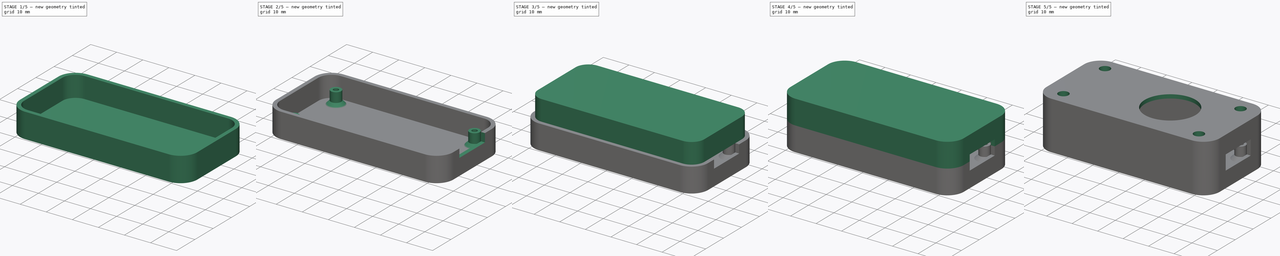
[diagram: build sequence overview — one tinted view per stage of 5, left to right]
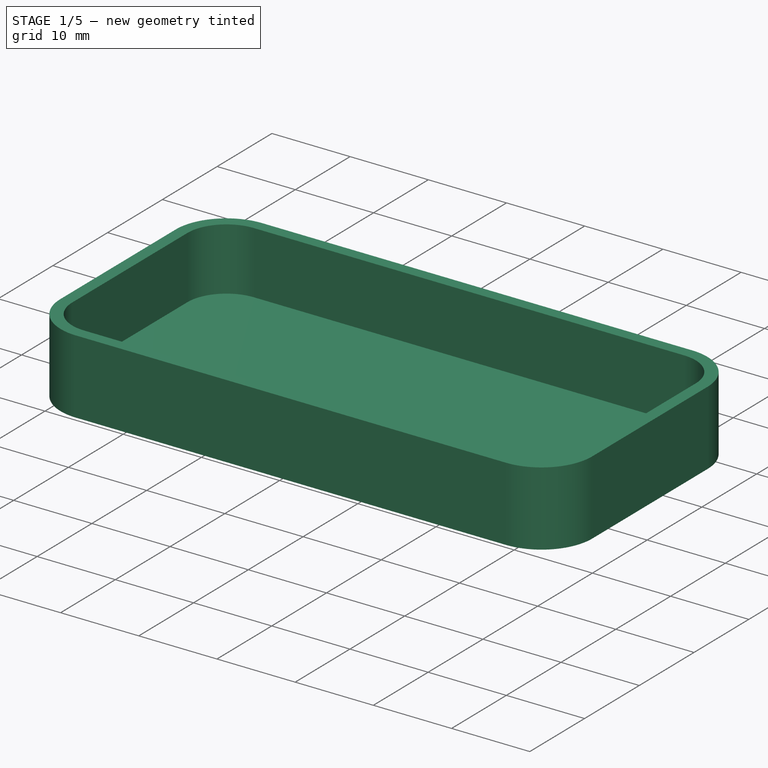
[diagram: stage 1 of 5 — iso view after this stage's code; geometry added in this stage tinted green]
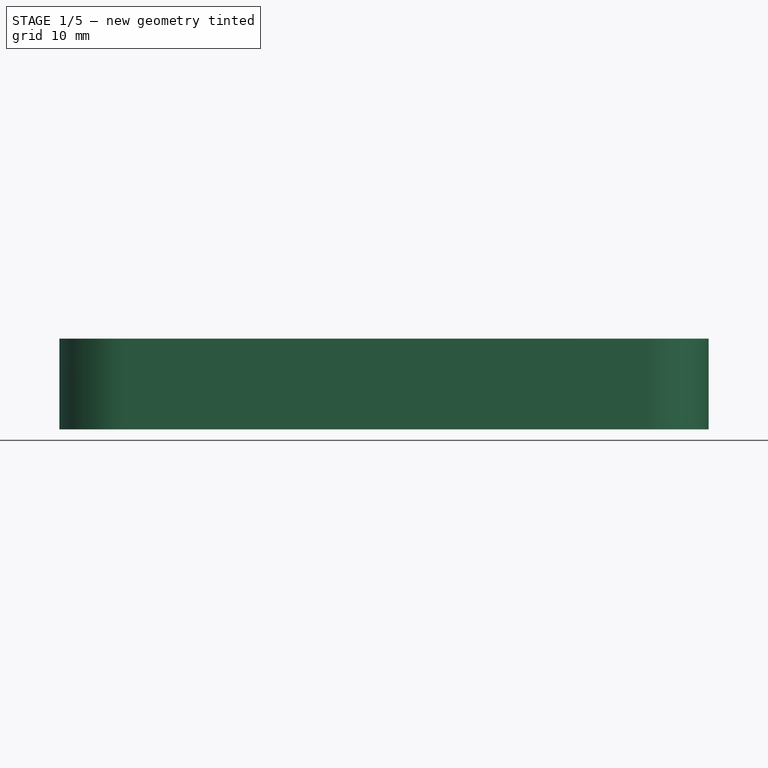
[diagram: stage 1 of 5 — front view after this stage's code; geometry added in this stage tinted green]
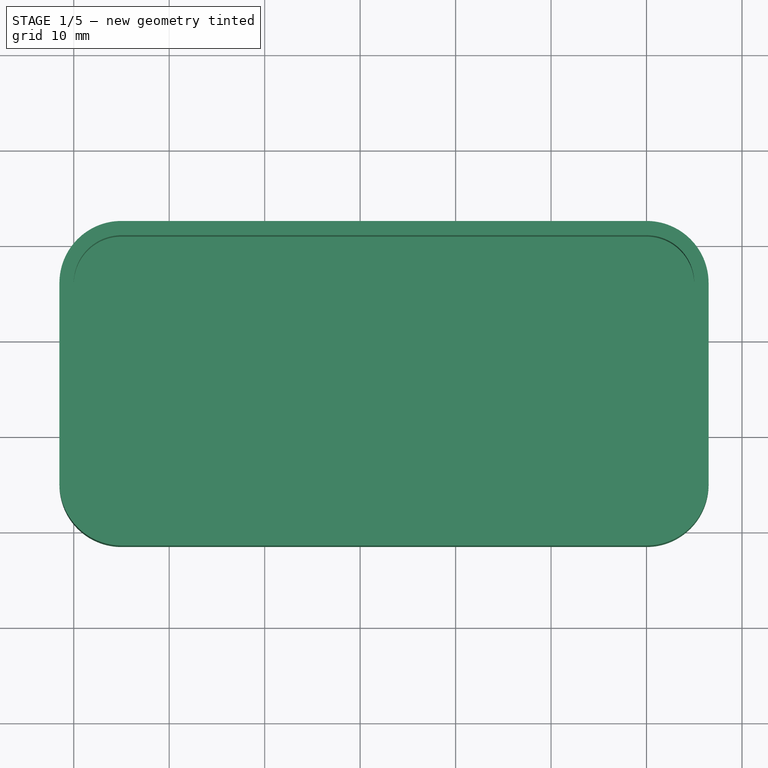
[diagram: stage 1 of 5 — top view after this stage's code; geometry added in this stage tinted green]
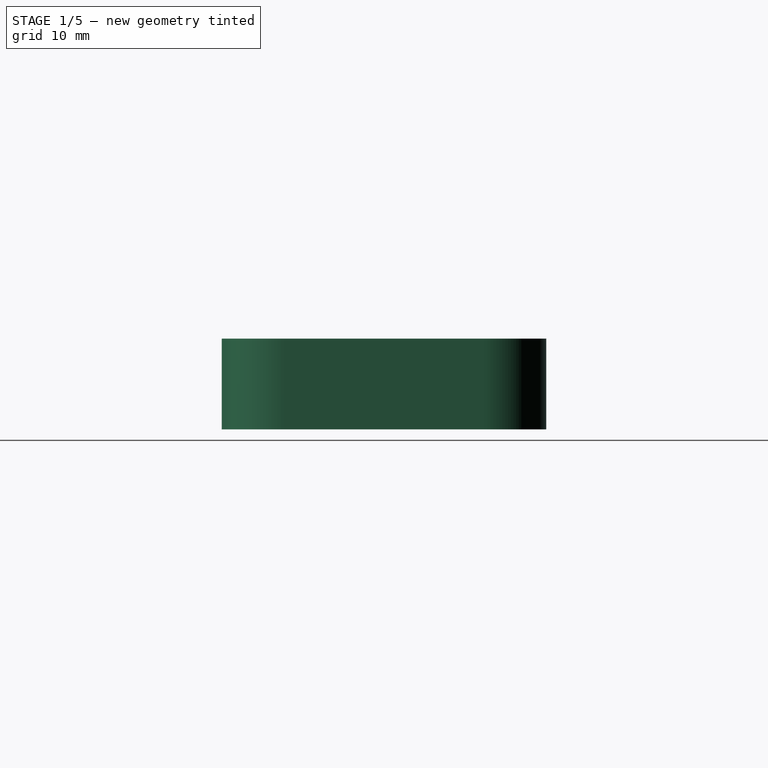
[diagram: stage 1 of 5 — right view after this stage's code; geometry added in this stage tinted green]
FCSTD DOCUMENT  (FreeCAD 0.21R33771 (Git))
Label: dhtmon
License: All rights reserved
LicenseURL: http://en.wikipedia.org/wiki/All_rights_reserved
objects: Part::Feature×69, Sketcher::SketchObject×7, App::Part×7, PartDesign::Pocket×3, App::Link×3, PartDesign::AdditiveBox×2, PartDesign::Fillet×2, PartDesign::Thickness×2, PartDesign::Pad×2, PartDesign::Chamfer×2, PartDesign::Body×2, PartDesign::Hole×1, Part::Part2DObjectPython×1, Part::Extrusion×1, Part::Cut×1, PartDesign::CoordinateSystem×1
note: 110 computed .brp shape members not serialized (recipe doc carries the construction recipe); baked Part::Feature solids carry a one-line shape summary decoded from their .brp

FEATURE [PartDesign::AdditiveBox] Box
  AttacherType = Attacher::AttachEngine3D
  Height = 8
  Length = 65
  Width = 31
FEATURE [PartDesign::Fillet] Fillet
  Base = -> Box [Edge5,Edge7,Edge3,Edge1]
  BaseFeature = -> Box
  Radius = 5
  SupportTransform = false
  UseAllEdges = false
FEATURE [PartDesign::Thickness] Thickness
  Base = -> Fillet [Face2]
  BaseFeature = -> Fillet
  Intersection = false
  Join = 1
  Mode = 1
  SupportTransform = false
  Value = 1.5
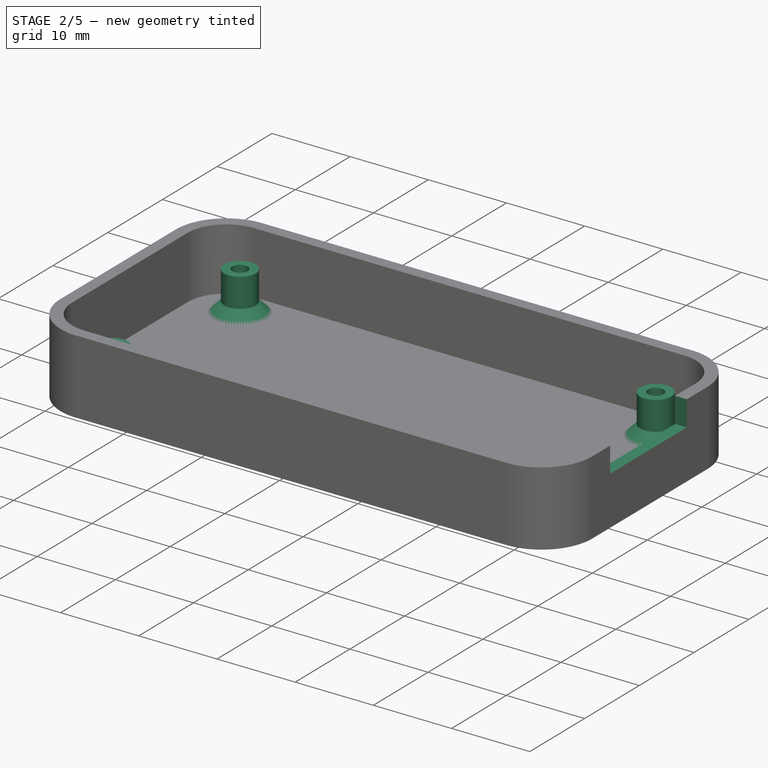
[diagram: stage 2 of 5 — iso view after this stage's code; geometry added in this stage tinted green]
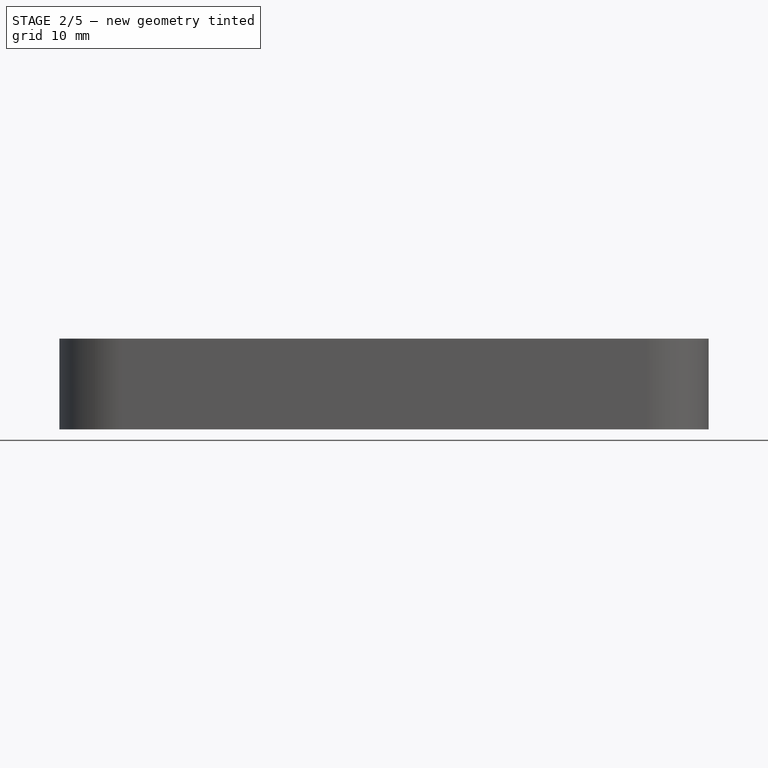
[diagram: stage 2 of 5 — front view after this stage's code; geometry added in this stage tinted green]
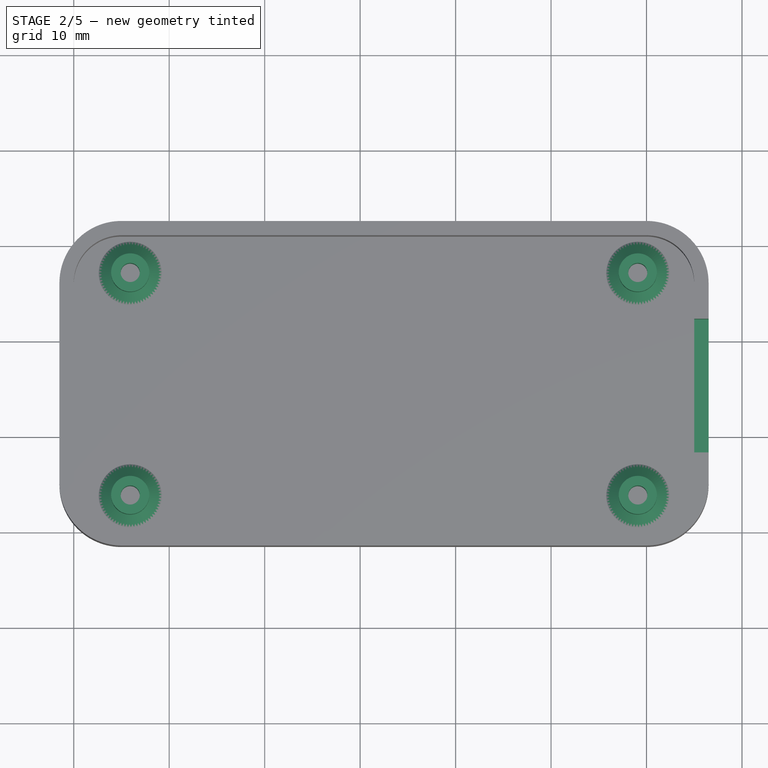
[diagram: stage 2 of 5 — top view after this stage's code; geometry added in this stage tinted green]
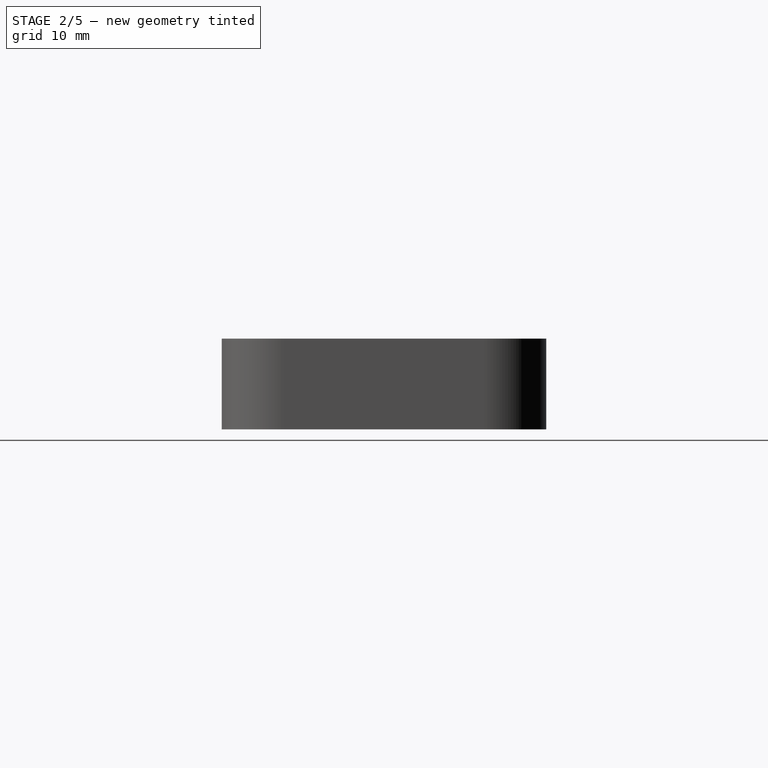
[diagram: stage 2 of 5 — right view after this stage's code; geometry added in this stage tinted green]
FEATURE [Sketcher::SketchObject] Sketch
  FullyConstrained = true
  MapMode = 5
  Support = -> [Thickness]
  expr: Constraints[10] = (Box.Width - .Constraints.HW) / 2
  expr: Constraints[11] = (Box.Length - .Constraints.HL) / 2
  sketch-geometry (12):
    g0: LineSegment StartX=5.915 StartY=27.155 StartZ=0 EndX=59.085 EndY=27.155 EndZ=0
    g1: LineSegment StartX=59.085 StartY=27.155 StartZ=0 EndX=59.085 EndY=3.845 EndZ=0
    g2: LineSegment StartX=59.085 StartY=3.845 StartZ=0 EndX=5.915 EndY=3.845 EndZ=0
    g3: LineSegment StartX=5.915 StartY=3.845 StartZ=0 EndX=5.915 EndY=27.155 EndZ=0
    g4: Circle CenterX=5.915 CenterY=27.155 CenterZ=0 NormalX=0 NormalY=0 NormalZ=1 AngleXU=0 Radius=1
    g5: Circle CenterX=5.915 CenterY=3.845 CenterZ=0 NormalX=0 NormalY=0 NormalZ=1 AngleXU=0 Radius=1
    g6: Circle CenterX=59.085 CenterY=3.845 CenterZ=0 NormalX=0 NormalY=0 NormalZ=1 AngleXU=0 Radius=1
    g7: Circle CenterX=59.085 CenterY=27.155 CenterZ=0 NormalX=0 NormalY=0 NormalZ=1 AngleXU=0 Radius=1
    g8: Circle CenterX=5.915 CenterY=27.155 CenterZ=0 NormalX=0 NormalY=0 NormalZ=1 AngleXU=0 Radius=2
    g9: Circle CenterX=5.915 CenterY=3.845 CenterZ=0 NormalX=0 NormalY=0 NormalZ=1 AngleXU=0 Radius=2
    g10: Circle CenterX=59.085 CenterY=3.845 CenterZ=0 NormalX=0 NormalY=0 NormalZ=1 AngleXU=0 Radius=2
    g11: Circle CenterX=59.085 CenterY=27.155 CenterZ=0 NormalX=0 NormalY=0 NormalZ=1 AngleXU=0 Radius=2
  constraints (28):
    c: Coincident(g0,g1)
    c: Coincident(g1,g2)
    c: Coincident(g2,g3)
    c: Coincident(g3,g0)
    c: Horizontal(g0)
    c: Horizontal(g2)
    c: Vertical(g1)
    c: Vertical(g3)
    c: DistanceX(g0,g0) = 53.17  'HL'
    c: DistanceY(g1,g1) = 23.31  'HW'
    c: DistanceY(g2) = 3.845
    c: DistanceX(g2) = 5.915
    c: Coincident(g4,g0)
    c: Coincident(g5,g2)
    c: Coincident(g6,g1)
    c: Coincident(g7,g0)
    c: Equal(g7,g4)
    c: Equal(g7,g5)
    c: Equal(g7,g6)
    c: Diameter(g7) = 2
    c: Coincident(g8,g4)
    c: Coincident(g9,g5)
    c: Coincident(g10,g6)
    c: Coincident(g11,g7)
    c: Equal(g11,g8)
    c: Equal(g11,g9)
    c: Equal(g11,g10)
    c: Diameter(g11) = 4
FEATURE [PartDesign::Pad] Pad
  BaseFeature = -> Thickness
  Direction = (0,0,1)
  Length = 5
  Length2 = 10
  Profile = -> Sketch
  ReferenceAxis = -> Sketch [N_Axis]
  Type = 0
FEATURE [Sketcher::SketchObject] Sketch001
  FullyConstrained = true
  MapMode = 5
  Placement = pos=(66.5,0,0) rot=(0.57735,0.57735,0.57735;2.0944rad)
  Support = -> [Pad]
  expr: .Constraints.REFH = (Box.Width - .Constraints.HL) / 2 - 0.25 mm
  sketch-geometry (4):
    g0: LineSegment StartX=8.25 StartY=10.25 StartZ=0 EndX=22.25 EndY=10.25 EndZ=0
    g1: LineSegment StartX=22.25 StartY=10.25 StartZ=0 EndX=22.25 EndY=4.75 EndZ=0
    g2: LineSegment StartX=22.25 StartY=4.75 StartZ=0 EndX=8.25 EndY=4.75 EndZ=0
    g3: LineSegment StartX=8.25 StartY=4.75 StartZ=0 EndX=8.25 EndY=10.25 EndZ=0
  constraints (12):
    c: Coincident(g0,g1)
    c: Coincident(g1,g2)
    c: Coincident(g2,g3)
    c: Coincident(g3,g0)
    c: Horizontal(g0)
    c: Horizontal(g2)
    c: Vertical(g1)
    c: Vertical(g3)
    c: DistanceX(g0,g0) = 14  'HL'
    c: DistanceY(g3,g3) = 5.5  'HH'
    c: DistanceX(g2) = 8.25  'REFH'
    c: DistanceY(g2) = 4.75
FEATURE [PartDesign::Pocket] Pocket
  BaseFeature = -> Pad
  Direction = (-1,0,0)
  Length = 5
  Length2 = 5
  Profile = -> Sketch001
  ReferenceAxis = -> Sketch001 [N_Axis]
  Type = 2
FEATURE [PartDesign::Body] Body001
  Group = -> [Box001,Fillet001,Thickness001,Sketch002,Pocket001,Sketch003,Pad001,Sketch004,Hole,Sketch005,Pocket002,Chamfer]
  Origin = -> Origin010
  Tip = -> Chamfer
FEATURE [PartDesign::Chamfer] Chamfer001
  Angle = 45
  Base = -> Pocket [Edge36,Edge35,Edge33,Edge34]
  BaseFeature = -> Pocket
  ChamferType = 0
  FlipDirection = false
  Size = 1.3
  Size2 = 1
  SupportTransform = false
  UseAllEdges = false
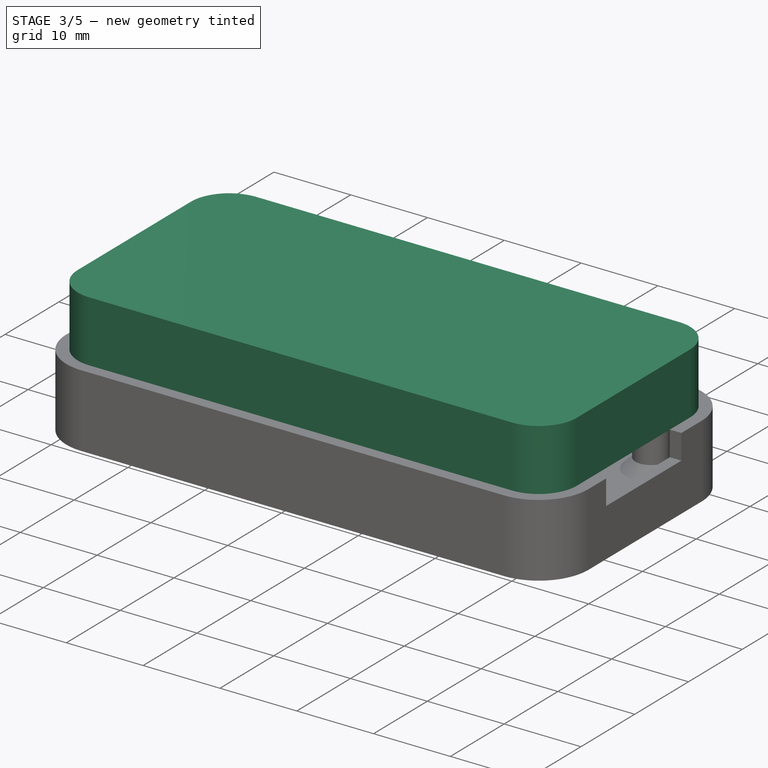
[diagram: stage 3 of 5 — iso view after this stage's code; geometry added in this stage tinted green]
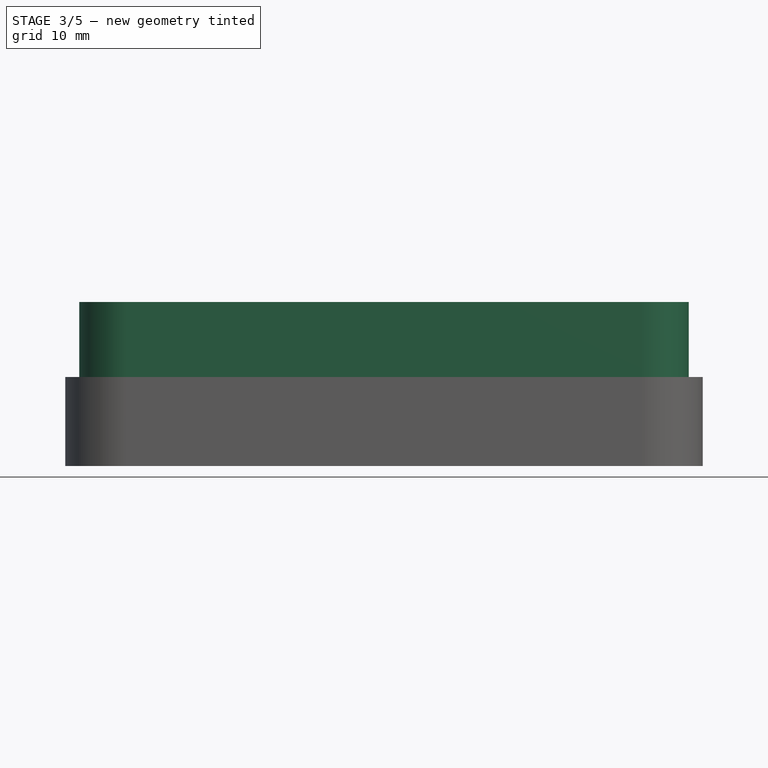
[diagram: stage 3 of 5 — front view after this stage's code; geometry added in this stage tinted green]
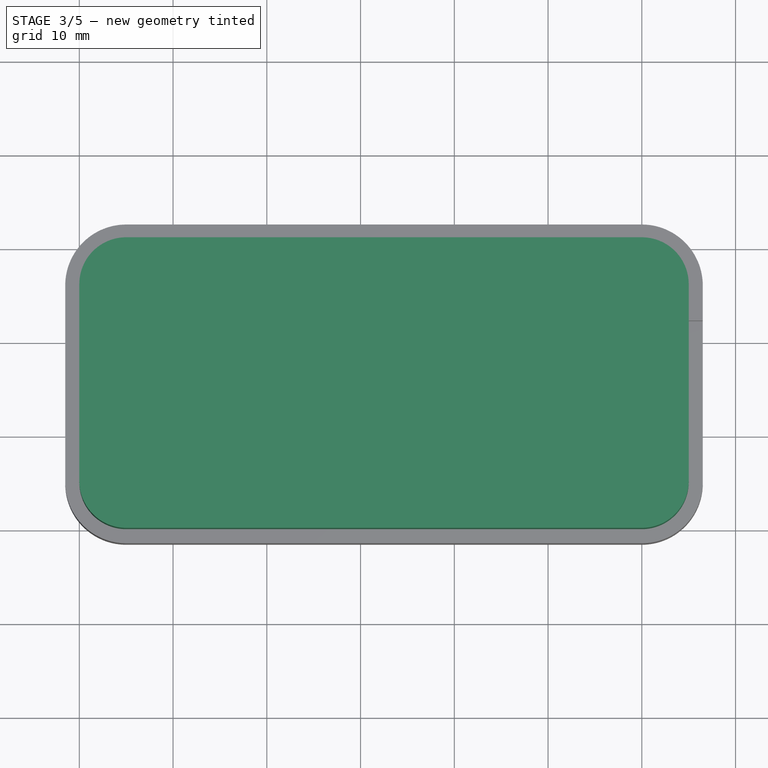
[diagram: stage 3 of 5 — top view after this stage's code; geometry added in this stage tinted green]
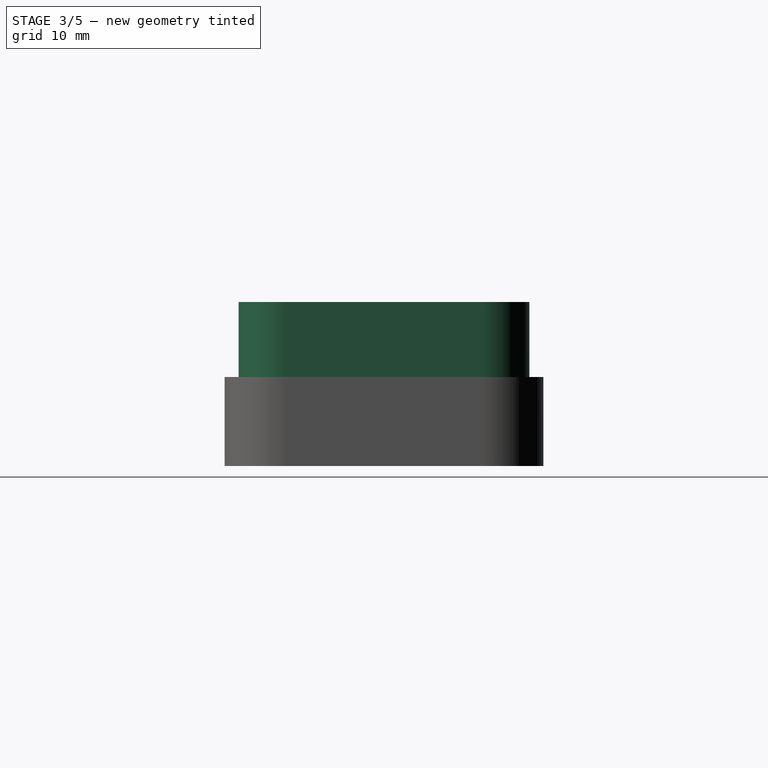
[diagram: stage 3 of 5 — right view after this stage's code; geometry added in this stage tinted green]
FEATURE [PartDesign::AdditiveBox] Box001
  AttacherType = Attacher::AttachEngine3D
  Height = 8
  Length = 65
  MapMode = 5
  Placement = pos=(0,0,8) rot=(0,0,1;0rad)
  Support = -> [Pocket]
  Width = 31
  expr: Height = Box.Height
  expr: Length = Box.Length
  expr: Width = Box.Width
FEATURE [PartDesign::Fillet] Fillet001
  Base = -> Box001 [Edge5,Edge7,Edge1,Edge3]
  BaseFeature = -> Box001
  Placement = pos=(0,0,8) rot=(0,0,1;0rad)
  Radius = 5
  SupportTransform = false
  UseAllEdges = false
FEATURE [Part::Part2DObjectPython] ShapeString  # Draft 2D object (typed FeaturePython)
  FontFile = <path>
  MakeFace = true
  Placement = pos=(8,19.15,-1.5) rot=(1,0,0;3.14159rad)
  Size = 3
  String = APICULA / DHTMON
  Tracking = 0
FEATURE [Part::Extrusion] Extrude
  Base = -> ShapeString
  Dir = (0,0,1)
  DirMode = 0
  FaceMakerClass = Part::FaceMakerBullseye
  LengthFwd = 0.5
  LengthRev = 0
  Solid = false
  Symmetric = false
FEATURE [PartDesign::Body] Body  label="Box_Bottom"
  Group = -> [Box,Fillet,Thickness,Sketch,Pad,Sketch001,Pocket,Chamfer001]
  Origin = -> Origin
  Tip = -> Chamfer001
FEATURE [Part::Cut] Cut
  Base = -> Body
  Tool = -> Extrude
FEATURE [PartDesign::CoordinateSystem] Local_CS_858a
  AttacherType = Attacher::AttachEngine3D
  MapMode = 2
  Support = -> [X_Axis012]
FEATURE [Part::Feature] Pcb_858a
  Placement = pos=(-168,105.25,0) rot=(0,0,1;0rad)
  shape: bbox 28.39 x 58.48 x 1.6 mm, 73 faces (baked)
FEATURE [Sketcher::SketchObject] PCB_Sketch_858a
  FullyConstrained = false
  sketch-geometry (4):
    g0: LineSegment StartX=-51.585 StartY=13.925 StartZ=0 EndX=-23.1946 EndY=13.925 EndZ=0
    g1: LineSegment StartX=-23.1946 StartY=13.925 StartZ=0 EndX=-23.1946 EndY=-44.55 EndZ=0
    g2: LineSegment StartX=-23.1946 StartY=-44.55 StartZ=0 EndX=-51.585 EndY=-44.55 EndZ=0
    g3: LineSegment StartX=-51.585 StartY=-44.55 StartZ=0 EndX=-51.585 EndY=13.925 EndZ=0
  constraints (4):
    c: Coincident(g2,g3)
    c: Coincident(g0,g3)
    c: Coincident(g1,g2)
    c: Coincident(g0,g1)
FEATURE [App::Part] Board_Geoms_858a
  Group = -> [Pcb_858a,PCB_Sketch_858a]
  Origin = -> Origin011
FEATURE [Part::Feature] Part__Feature  label="ESP_12E001_cp"
  shape: bbox 16 x 24 x 0.9 mm, 74 faces (baked)
FEATURE [Part::Feature] Part__Feature001  label="ESP_12E001_cp001"
  shape: bbox 12 x 15 x 2.3 mm, 18 faces (baked)
FEATURE [Part::Feature] Part__Feature002  label="ESP_12E001_cp002"
  shape: bbox 0.35 x 0.7 x 0.9 mm, 6 faces (baked)
FEATURE [Part::Feature] Part__Feature003  label="ESP_12E001_cp003"
  shape: bbox 1.5 x 0.95 x 0.05 mm, 9 faces (baked)
FEATURE [Part::Feature] Part__Feature004  label="ESP_12E001_cp004"
  shape: bbox 0.35 x 0.7 x 0.9 mm, 6 faces (baked)
FEATURE [Part::Feature] Part__Feature005  label="ESP_12E001_cp005"
  shape: bbox 0.35 x 0.7 x 0.9 mm, 6 faces (baked)
FEATURE [Part::Feature] Part__Feature006  label="ESP_12E001_cp006"
  shape: bbox 0.35 x 0.7 x 0.9 mm, 6 faces (baked)
FEATURE [Part::Feature] Part__Feature007  label="ESP_12E001_cp007"
  shape: bbox 0.35 x 0.7 x 0.9 mm, 6 faces (baked)
FEATURE [Part::Feature] Part__Feature008  label="ESP_12E001_cp008"
  shape: bbox 0.35 x 0.7 x 0.9 mm, 6 faces (baked)
FEATURE [Part::Feature] Part__Feature009  label="ESP_12E001_cp009"
  shape: bbox 0.35 x 0.7 x 0.9 mm, 6 faces (baked)
FEATURE [Part::Feature] Part__Feature010  label="ESP_12E001_cp010"
  shape: bbox 0.35 x 0.7 x 0.9 mm, 6 faces (baked)
FEATURE [Part::Feature] Part__Feature011  label="ESP_12E001_cp011"
  shape: bbox 1.5 x 0.95 x 0.05 mm, 9 faces (baked)
FEATURE [Part::Feature] Part__Feature012  label="ESP_12E001_cp012"
  shape: bbox 1.5 x 0.95 x 0.05 mm, 9 faces (baked)
FEATURE [Part::Feature] Part__Feature013  label="ESP_12E001_cp013"
  shape: bbox 1.5 x 0.95 x 0.05 mm, 9 faces (baked)
FEATURE [Part::Feature] Part__Feature014  label="ESP_12E001_cp014"
  shape: bbox 1.5 x 0.95 x 0.05 mm, 9 faces (baked)
FEATURE [Part::Feature] Part__Feature015  label="ESP_12E001_cp015"
  shape: bbox 1.5 x 0.95 x 0.05 mm, 9 faces (baked)
FEATURE [Part::Feature] Part__Feature016  label="ESP_12E001_cp016"
  shape: bbox 1.5 x 0.95 x 0.05 mm, 9 faces (baked)
FEATURE [Part::Feature] Part__Feature017  label="ESP_12E001_cp017"
  shape: bbox 1.5 x 0.95 x 0.05 mm, 9 faces (baked)
FEATURE [Part::Feature] Part__Feature018  label="ESP_12E001_cp018"
  shape: bbox 0.35 x 0.7 x 0.9 mm, 6 faces (baked)
FEATURE [Part::Feature] Part__Feature019  label="ESP_12E001_cp019"
  shape: bbox 1.5 x 0.95 x 0.05 mm, 9 faces (baked)
FEATURE [Part::Feature] Part__Feature020  label="ESP_12E001_cp020"
  shape: bbox 0.35 x 0.7 x 0.9 mm, 6 faces (baked)
FEATURE [Part::Feature] Part__Feature021  label="ESP_12E001_cp021"
  shape: bbox 0.35 x 0.7 x 0.9 mm, 6 faces (baked)
FEATURE [Part::Feature] Part__Feature022  label="ESP_12E001_cp022"
  shape: bbox 0.35 x 0.7 x 0.9 mm, 6 faces (baked)
FEATURE [Part::Feature] Part__Feature023  label="ESP_12E001_cp023"
  shape: bbox 0.35 x 0.7 x 0.9 mm, 6 faces (baked)
FEATURE [Part::Feature] Part__Feature024  label="ESP_12E001_cp024"
  shape: bbox 0.35 x 0.7 x 0.9 mm, 6 faces (baked)
FEATURE [Part::Feature] Part__Feature025  label="ESP_12E001_cp025"
  shape: bbox 0.35 x 0.7 x 0.9 mm, 6 faces (baked)
FEATURE [Part::Feature] Part__Feature026  label="ESP_12E001_cp026"
  shape: bbox 0.35 x 0.7 x 0.9 mm, 6 faces (baked)
FEATURE [Part::Feature] Part__Feature027  label="ESP_12E001_cp027"
  shape: bbox 1.5 x 0.95 x 0.05 mm, 9 faces (baked)
FEATURE [Part::Feature] Part__Feature028  label="ESP_12E001_cp028"
  shape: bbox 1.5 x 0.95 x 0.05 mm, 9 faces (baked)
FEATURE [Part::Feature] Part__Feature029  label="ESP_12E001_cp029"
  shape: bbox 1.5 x 0.95 x 0.05 mm, 9 faces (baked)
FEATURE [Part::Feature] Part__Feature030  label="ESP_12E001_cp030"
  shape: bbox 1.5 x 0.95 x 0.05 mm, 9 faces (baked)
FEATURE [Part::Feature] Part__Feature031  label="ESP_12E001_cp031"
  shape: bbox 1.5 x 0.95 x 0.05 mm, 9 faces (baked)
FEATURE [Part::Feature] Part__Feature032  label="ESP_12E001_cp032"
  shape: bbox 1.5 x 0.95 x 0.05 mm, 9 faces (baked)
FEATURE [Part::Feature] Part__Feature033  label="ESP_12E001_cp033"
  shape: bbox 1.5 x 0.95 x 0.05 mm, 9 faces (baked)
FEATURE [Part::Feature] Part__Feature034  label="ESP_12E001_cp034"
  shape: bbox 12 x 6.7 x 0.1 mm, 34 faces (baked)
FEATURE [Part::Feature] Part__Feature035  label="ESP_12E001_cp035"
  shape: bbox 0.7 x 0.35 x 0.9 mm, 6 faces (baked)
FEATURE [Part::Feature] Part__Feature036  label="ESP_12E001_cp036"
  shape: bbox 0.7 x 0.35 x 0.9 mm, 6 faces (baked)
FEATURE [Part::Feature] Part__Feature037  label="ESP_12E001_cp037"
  shape: bbox 0.7 x 0.35 x 0.9 mm, 6 faces (baked)
FEATURE [Part::Feature] Part__Feature038  label="ESP_12E001_cp038"
  shape: bbox 0.7 x 0.35 x 0.9 mm, 6 faces (baked)
FEATURE [Part::Feature] Part__Feature039  label="ESP_12E001_cp039"
  shape: bbox 0.7 x 0.35 x 0.9 mm, 6 faces (baked)
FEATURE [Part::Feature] Part__Feature040  label="ESP_12E001_cp040"
  shape: bbox 0.7 x 0.35 x 0.9 mm, 6 faces (baked)
FEATURE [Part::Feature] Part__Feature041  label="ESP_12E001_cp041"
  shape: bbox 0.95 x 1 x 0.05 mm, 8 faces (baked)
FEATURE [Part::Feature] Part__Feature042  label="ESP_12E001_cp042"
  shape: bbox 0.95 x 1 x 0.05 mm, 8 faces (baked)
FEATURE [Part::Feature] Part__Feature043  label="ESP_12E001_cp043"
  shape: bbox 0.95 x 1 x 0.05 mm, 8 faces (baked)
FEATURE [Part::Feature] Part__Feature044  label="ESP_12E001_cp044"
  shape: bbox 0.95 x 1 x 0.05 mm, 8 faces (baked)
FEATURE [Part::Feature] Part__Feature045  label="ESP_12E001_cp045"
  shape: bbox 0.95 x 1 x 0.05 mm, 8 faces (baked)
FEATURE [Part::Feature] Part__Feature046  label="ESP_12E001_cp046"
  shape: bbox 0.95 x 1 x 0.05 mm, 8 faces (baked)
FEATURE [Part::Feature] Part__Feature047  label="ESP_12E001_cp047"
  shape: bbox 1.6 x 0.8 x 1.1 mm, 38 faces (baked)
FEATURE [App::Part] ESP_12E001_cp  label="U3_ESP_12E001_cp048_7cbf492ad2f""
  Group = -> [Part__Feature,Part__Feature001,Part__Feature002,Part__Feature003,Part__Feature004,Part__Feature005,Part__Feature006,Part__Feature007,Part__Feature008,Part__Feature009,Part__Feature010,Part__Feature011,Part__Feature012,Part__Feature013,Part__Feature014,Part__Feature015,Part__Feature016,Part__Feature017,Part__Feature018,Part__Feature019,Part__Feature020,Part__Feature021,Part__Feature022,+25 more]
  Origin = -> Origin019
  Placement = pos=(-37.475,0.225,0) rot=(0,0,1;0rad)
FEATURE [Part::Feature] Shape  label="SW1_SW_PUSH_6mm_e90dab117c7""
  Placement = pos=(-41.38,-20.73,0) rot=(0,0,1;0rad)
  shape: bbox 7.174 x 6 x 7.8 mm, 105 faces (baked)
FEATURE [Part::Feature] Shape001  label="JP1_PinHeader_1x02_P254mm_Vertical_5338887fbbb""
  Placement = pos=(-28.5773,-15.5507,0) rot=(0,0,1;0rad)
  shape: bbox 2.54 x 5.08 x 11.54 mm, 52 faces (baked)
FEATURE [Part::Feature] Part__Feature048  label="USB_A_CNCTech_1001-011-01101_Horizontal"
  shape: bbox 18.8 x 12.5 x 6.1 mm, 99 faces (baked)
FEATURE [Part::Feature] Part__Feature049  label="USB_A_CNCTech_1001-011-01101_Horizontal001"
  shape: bbox 18.8 x 11.45 x 3.9 mm, 35 faces (baked)
FEATURE [Part::Feature] Part__Feature050  label="USB_A_CNCTech_1001-011-01101_Horizontal002"
  shape: bbox 6.41 x 1 x 0.38 mm, 6 faces (baked)
FEATURE [Part::Feature] Part__Feature051  label="USB_A_CNCTech_1001-011-01101_Horizontal003"
  shape: bbox 7.41 x 1 x 0.38 mm, 6 faces (baked)
FEATURE [Part::Feature] Part__Feature052  label="USB_A_CNCTech_1001-011-01101_Horizontal004"
  shape: bbox 6.41 x 1 x 0.38 mm, 6 faces (baked)
FEATURE [Part::Feature] Part__Feature053  label="USB_A_CNCTech_1001-011-01101_Horizontal005"
  shape: bbox 7.41 x 1 x 0.38 mm, 6 faces (baked)
FEATURE [Part::Feature] Part__Feature054  label="USB_A_CNCTech_1001-011-01101_Horizontal006"
  shape: bbox 1.082 x 1.082 x 1.1 mm, 4 faces (baked)
FEATURE [Part::Feature] Part__Feature055  label="USB_A_CNCTech_1001-011-01101_Horizontal007"
  shape: bbox 1.082 x 1.082 x 1.1 mm, 4 faces (baked)
FEATURE [Part::Feature] Part__Feature056  label="USB_A_CNCTech_1001-011-01101_Horizontal008"
  shape: bbox 2.5 x 0.6 x 0.595 mm, 22 faces (baked)
FEATURE [Part::Feature] Part__Feature057  label="USB_A_CNCTech_1001-011-01101_Horizontal009"
  shape: bbox 2.5 x 0.6 x 0.595 mm, 22 faces (baked)
FEATURE [Part::Feature] Part__Feature058  label="USB_A_CNCTech_1001-011-01101_Horizontal010"
  shape: bbox 2.5 x 0.6 x 0.595 mm, 22 faces (baked)
FEATURE [Part::Feature] Part__Feature059  label="USB_A_CNCTech_1001-011-01101_Horizontal011"
  shape: bbox 2.5 x 0.6 x 0.595 mm, 22 faces (baked)
FEATURE [App::Part] USB_A_CNCTech_1001_011_01101_Horizontal  label="J1_USB_A_CNCTech_1001-011-01101_Horizontal012_fd00024d9c6""
  Group = -> [Part__Feature048,Part__Feature049,Part__Feature050,Part__Feature051,Part__Feature052,Part__Feature053,Part__Feature054,Part__Feature055,Part__Feature056,Part__Feature057,Part__Feature058,Part__Feature059]
  Origin = -> Origin020
  Placement = pos=(-37.7,-48.275,0) rot=(0,0,-1;1.5708rad)
FEATURE [Part::Feature] Shape002  label="D1_LED_D3.0mm_93daa19f20b""
  Placement = pos=(-28.1023,-33.5837,0) rot=(0,0,-1;1.5708rad)
  shape: bbox 3.8 x 3.4 x 10.8 mm, 16 faces (baked)
FEATURE [Part::Feature] Shape003  label="GPIO1_PinHeader_1x06_P254mm_Vertical_d6eedf2e2e6""
  Placement = pos=(-45.0888,-33.4242,0) rot=(0,0,1;1.5708rad)
  shape: bbox 15.24 x 2.54 x 11.54 mm, 148 faces (baked)
FEATURE [Part::Feature] Shape004  label="DEBUG1_PinHeader_1x04_P254mm_Vertical_09cc47e92f4""
  Placement = pos=(-47.4366,-16.2137,0) rot=(0,0,1;0rad)
  shape: bbox 2.54 x 10.16 x 11.54 mm, 100 faces (baked)
FEATURE [Part::Feature] Shape005  label="C1_C_Disc_D50mm_W25mm_P500mm_a14dd3273c7""
  Placement = pos=(-42.8224,-16.1528,0) rot=(0,0,1;0rad)
  shape: bbox 5.5 x 2.5 x 7.1 mm, 10 faces (baked)
FEATURE [App::Part] Top_858a
  Group = -> [ESP_12E001_cp,Shape,Shape001,USB_A_CNCTech_1001_011_01101_Horizontal,Shape002,Shape003,Shape004,Shape005]
  Origin = -> Origin014
FEATURE [Part::Feature] Shape006  label="R2_R_0805_2012Metric_19a90a1a689""
  Placement = pos=(-34.9678,-16.0895,-1.6) rot=(0.707107,-0.707107,0;3.14159rad)
  shape: bbox 1.2 x 2 x 0.45 mm, 26 faces (baked)
FEATURE [App::Link] R2_R_0805_2012Metric_19a90a1a689__ln_  label="R1_R_0805_2012Metric_19d80dcdc4f""
  LinkPlacement = pos=(-40.2273,-16.0777,-1.6) rot=(0.707107,0.707107,0;3.14159rad)
  LinkedObject = -> Shape006
  Placement = pos=(-40.2273,-16.0777,-1.6) rot=(0.707107,0.707107,0;3.14159rad)
FEATURE [App::Link] R2_R_0805_2012Metric_19a90a1a689__ln_001  label="R5_R_0805_2012Metric_fd874caabbd""
  LinkPlacement = pos=(-33.5252,-29.9152,-1.6) rot=(0,1,0;3.14159rad)
  LinkedObject = -> Shape006
  Placement = pos=(-33.5252,-29.9152,-1.6) rot=(0,1,0;3.14159rad)
FEATURE [Part::Feature] Shape007  label="U1_TO-262-3_Vertical_1aaef00cf20""
  Placement = pos=(-28.1773,-22.5288,-1.6) rot=(0.707107,-0.707107,0;3.14159rad)
  shape: bbox 4.501 x 10.01 x 20.74 mm, 67 faces (baked)
FEATURE [App::Link] R2_R_0805_2012Metric_19a90a1a689__ln_002  label="R3_R_0805_2012Metric_75537eb623b""
  LinkPlacement = pos=(-31.7463,-16.0895,-1.6) rot=(0.707107,0.707107,0;3.14159rad)
  LinkedObject = -> Shape006
  Placement = pos=(-31.7463,-16.0895,-1.6) rot=(0.707107,0.707107,0;3.14159rad)
FEATURE [App::Part] Bot_858a
  Group = -> [Shape006,R2_R_0805_2012Metric_19a90a1a689__ln_,R2_R_0805_2012Metric_19a90a1a689__ln_001,Shape007,R2_R_0805_2012Metric_19a90a1a689__ln_002]
  Origin = -> Origin015
FEATURE [App::Part] Step_Models_858a
  Group = -> [Top_858a,Bot_858a]
  Origin = -> Origin013
FEATURE [App::Part] Board_858a  label="dhtmon"
  Group = -> [Local_CS_858a,Board_Geoms_858a,Step_Models_858a]
  Origin = -> Origin012
  Placement = pos=(17,53,6.6) rot=(0,0,1;1.5708rad)
note: 1 file-system path scrubbed to <path> (originals preserved in the JSON sidecar)
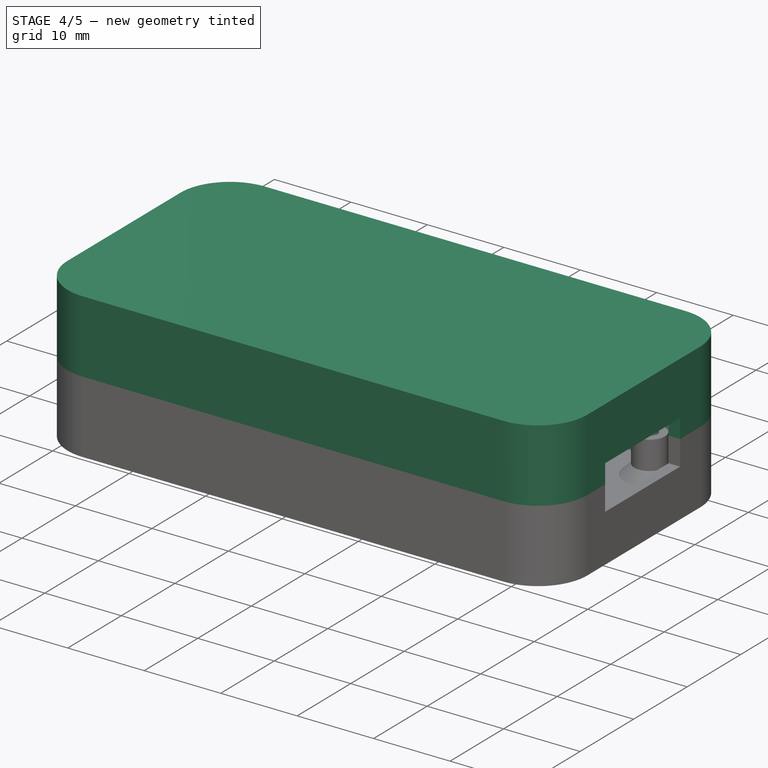
[diagram: stage 4 of 5 — iso view after this stage's code; geometry added in this stage tinted green]
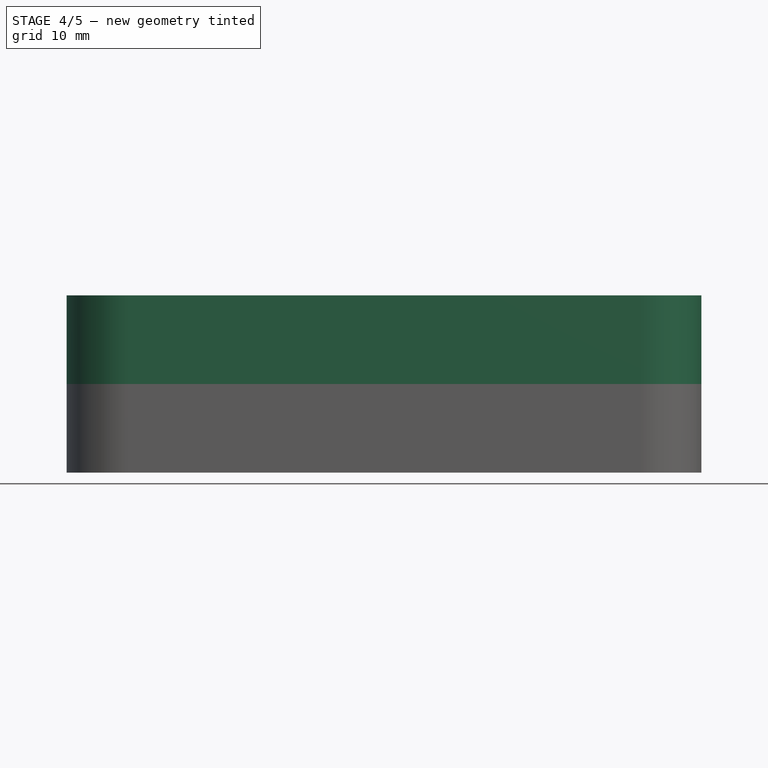
[diagram: stage 4 of 5 — front view after this stage's code; geometry added in this stage tinted green]
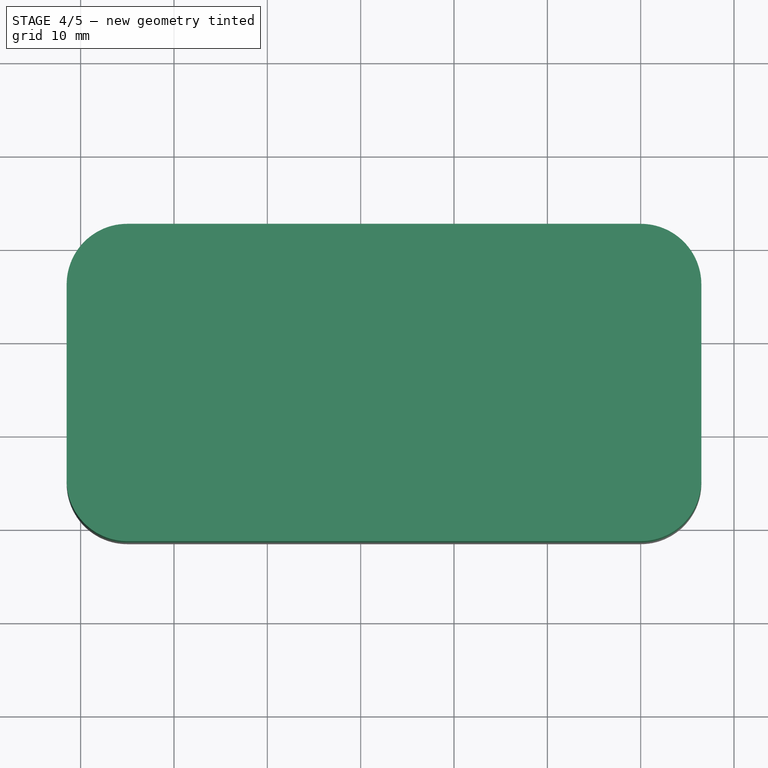
[diagram: stage 4 of 5 — top view after this stage's code; geometry added in this stage tinted green]
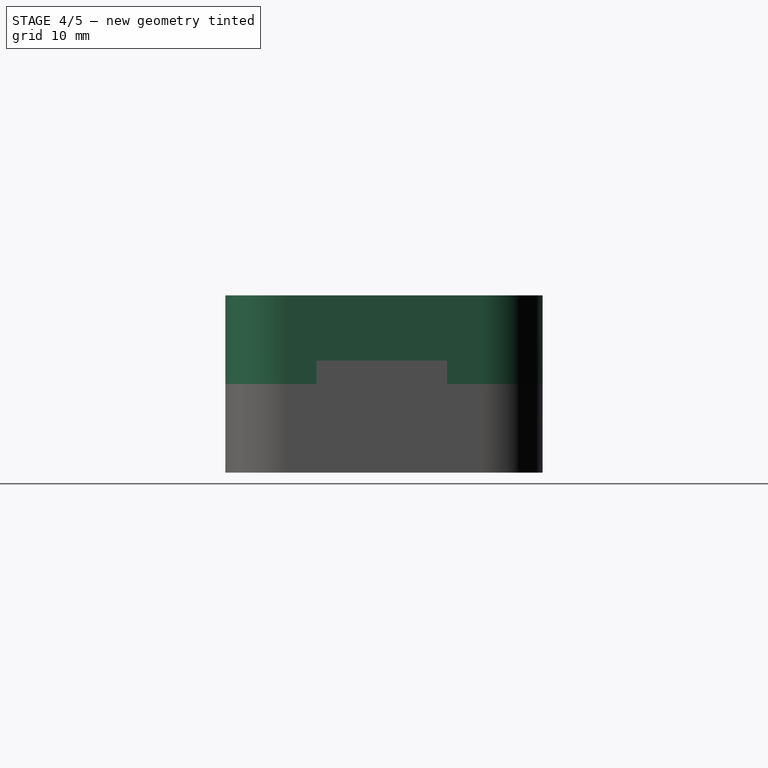
[diagram: stage 4 of 5 — right view after this stage's code; geometry added in this stage tinted green]
FEATURE [PartDesign::Thickness] Thickness001
  Base = -> Fillet001 [Face5]
  BaseFeature = -> Fillet001
  Intersection = false
  Join = 1
  Mode = 0
  SupportTransform = false
  Value = 1.5
FEATURE [Sketcher::SketchObject] Sketch002
  FullyConstrained = true
  MapMode = 5
  Placement = pos=(66.5,0,0) rot=(0.57735,0.57735,0.57735;2.0944rad)
  Support = -> [Thickness001]
  expr: Constraints[11] = Box.Height
  expr: Constraints[8] = Sketch001.Constraints.REFH
  expr: Constraints[9] = Sketch001.Constraints.HL
  sketch-geometry (4):
    g0: LineSegment StartX=8.25 StartY=8 StartZ=0 EndX=22.25 EndY=8 EndZ=0
    g1: LineSegment StartX=22.25 StartY=8 StartZ=0 EndX=22.25 EndY=10.5 EndZ=0
    g2: LineSegment StartX=22.25 StartY=10.5 StartZ=0 EndX=8.25 EndY=10.5 EndZ=0
    g3: LineSegment StartX=8.25 StartY=10.5 StartZ=0 EndX=8.25 EndY=8 EndZ=0
  constraints (12):
    c: Coincident(g0,g1)
    c: Coincident(g1,g2)
    c: Coincident(g2,g3)
    c: Coincident(g3,g0)
    c: Horizontal(g0)
    c: Horizontal(g2)
    c: Vertical(g1)
    c: Vertical(g3)
    c: DistanceX(g2) = 8.25
    c: DistanceX(g2,g2) = 14
    c: DistanceY(g3,g3) = 2.5
    c: DistanceY(g0) = 8
FEATURE [PartDesign::Pocket] Pocket001
  BaseFeature = -> Thickness001
  Direction = (-1,0,0)
  Length = 5
  Length2 = 5
  Profile = -> Sketch002
  ReferenceAxis = -> Sketch002 [N_Axis]
  Type = 2
FEATURE [Sketcher::SketchObject] Sketch003
  FullyConstrained = true
  MapMode = 5
  Placement = pos=(0,0,16) rot=(1,0,0;3.14159rad)
  Support = -> [Pocket001]
  expr: .Constraints.HL = Sketch.Constraints.HL
  expr: .Constraints.HW = Sketch.Constraints.HW
  expr: Constraints[10] = (Box.Length - .Constraints.HL) / 2
  expr: Constraints[11] = -(Box.Width - .Constraints.HW) / 2
  sketch-geometry (8):
    g0: LineSegment StartX=5.915 StartY=-3.845 StartZ=0 EndX=59.085 EndY=-3.845 EndZ=0
    g1: LineSegment StartX=59.085 StartY=-3.845 StartZ=0 EndX=59.085 EndY=-27.155 EndZ=0
    g2: LineSegment StartX=59.085 StartY=-27.155 StartZ=0 EndX=5.915 EndY=-27.155 EndZ=0
    g3: LineSegment StartX=5.915 StartY=-27.155 StartZ=0 EndX=5.915 EndY=-3.845 EndZ=0
    g4: Circle CenterX=59.085 CenterY=-3.845 CenterZ=0 NormalX=0 NormalY=0 NormalZ=1 AngleXU=0 Radius=2.5
    g5: Circle CenterX=59.085 CenterY=-27.155 CenterZ=0 NormalX=0 NormalY=0 NormalZ=1 AngleXU=0 Radius=2.5
    g6: Circle CenterX=5.915 CenterY=-27.155 CenterZ=0 NormalX=0 NormalY=0 NormalZ=1 AngleXU=0 Radius=2.5
    g7: Circle CenterX=5.915 CenterY=-3.845 CenterZ=0 NormalX=0 NormalY=0 NormalZ=1 AngleXU=0 Radius=2.5
  constraints (20):
    c: Coincident(g0,g1)
    c: Coincident(g1,g2)
    c: Coincident(g2,g3)
    c: Coincident(g3,g0)
    c: Horizontal(g0)
    c: Horizontal(g2)
    c: Vertical(g1)
    c: Vertical(g3)
    c: DistanceX(g0,g0) = 53.17  'HL'
    c: DistanceY(g3,g3) = 23.31  'HW'
    c: DistanceX(g2) = 5.915
    c: DistanceY(g0) = -3.845
    c: Coincident(g4,g0)
    c: Coincident(g5,g1)
    c: Coincident(g7,g0)
    c: Equal(g7,g4)
    c: Equal(g7,g5)
    c: Equal(g7,g6)
    c: Diameter(g7) = 5
    c: Coincident(g6,g2)
FEATURE [PartDesign::Pad] Pad001
  BaseFeature = -> Pocket001
  Direction = (0,0,-1)
  Length = 9.3
  Length2 = 10
  Profile = -> Sketch003
  ReferenceAxis = -> Sketch003 [N_Axis]
  Type = 0
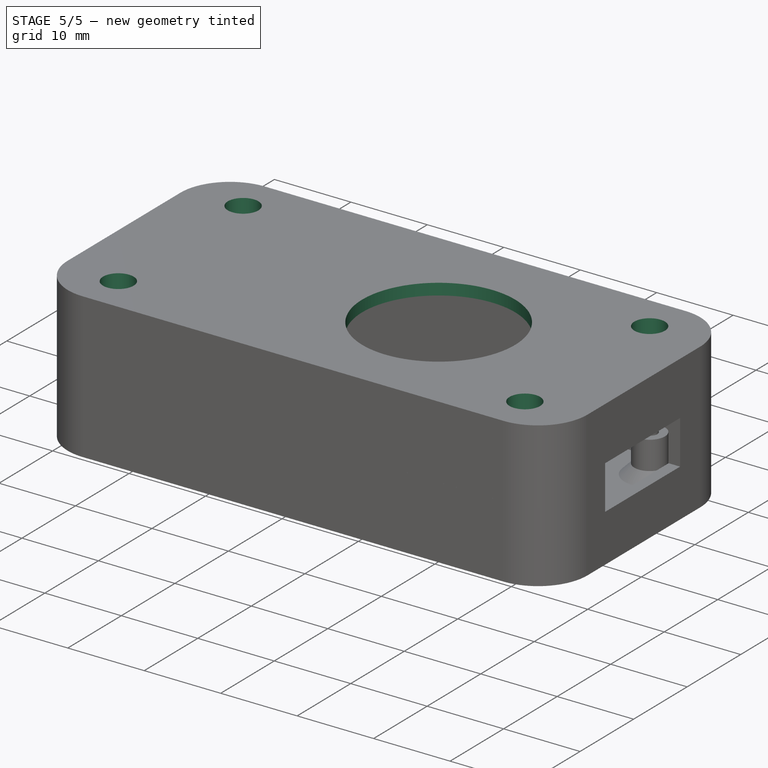
[diagram: stage 5 of 5 — iso view after this stage's code; geometry added in this stage tinted green]
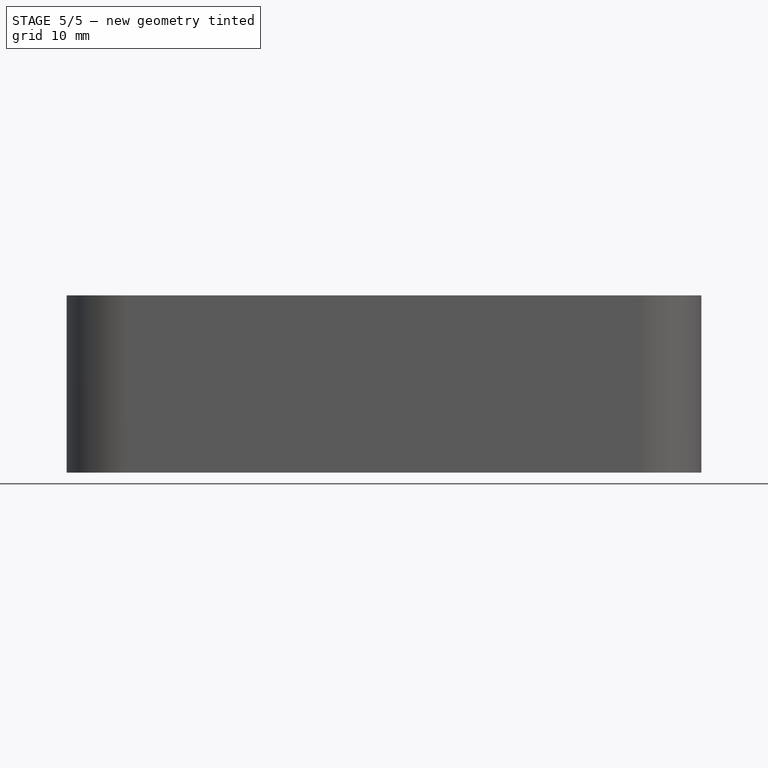
[diagram: stage 5 of 5 — front view after this stage's code; geometry added in this stage tinted green]
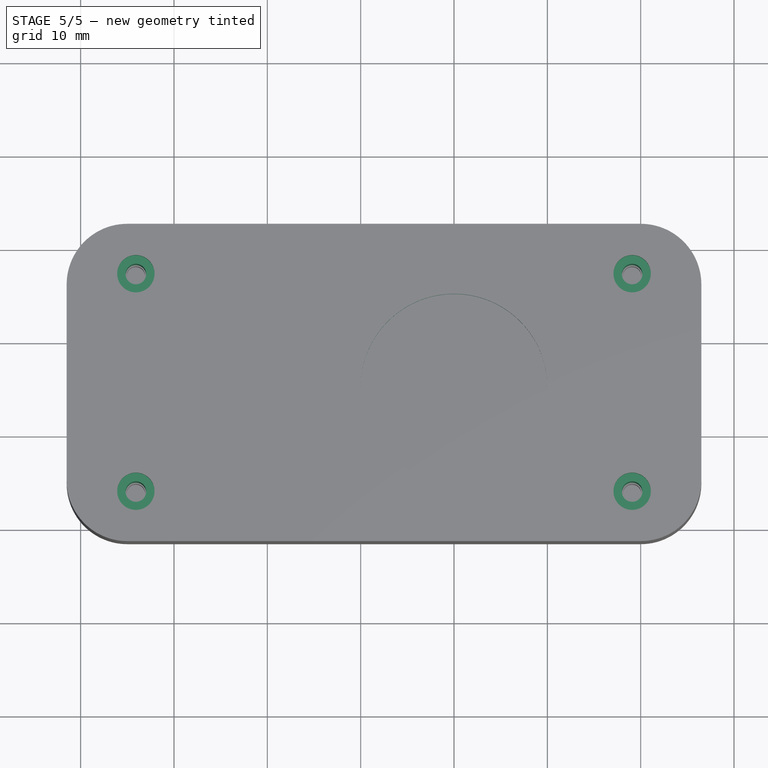
[diagram: stage 5 of 5 — top view after this stage's code; geometry added in this stage tinted green]
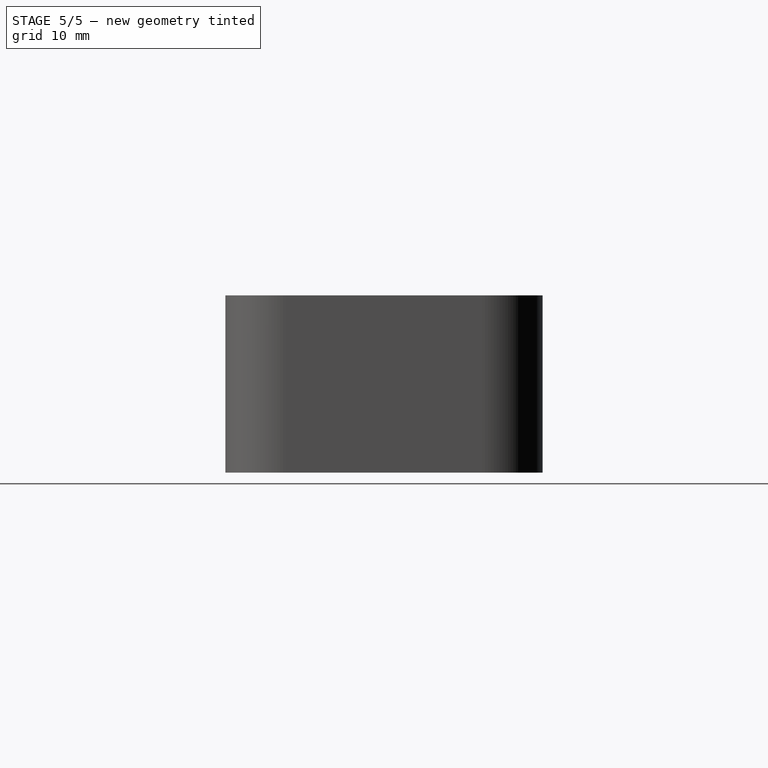
[diagram: stage 5 of 5 — right view after this stage's code; geometry added in this stage tinted green]
FEATURE [Sketcher::SketchObject] Sketch004
  FullyConstrained = true
  MapMode = 5
  Placement = pos=(0,0,17.5) rot=(0,0,1;0rad)
  Support = -> [Pad001]
  expr: .Constraints.HL = Sketch.Constraints.HL
  expr: .Constraints.HW = Sketch.Constraints.HW
  expr: Constraints[10] = (Box.Length - .Constraints.HL) / 2
  expr: Constraints[11] = (Box.Width - .Constraints.HW) / 2
  sketch-geometry (8):
    g0: LineSegment StartX=5.915 StartY=27.155 StartZ=0 EndX=59.085 EndY=27.155 EndZ=0
    g1: LineSegment StartX=59.085 StartY=27.155 StartZ=0 EndX=59.085 EndY=3.845 EndZ=0
    g2: LineSegment StartX=59.085 StartY=3.845 StartZ=0 EndX=5.915 EndY=3.845 EndZ=0
    g3: LineSegment StartX=5.915 StartY=3.845 StartZ=0 EndX=5.915 EndY=27.155 EndZ=0
    g4: Circle CenterX=5.915 CenterY=27.155 CenterZ=0 NormalX=0 NormalY=0 NormalZ=1 AngleXU=0 Radius=1
    g5: Circle CenterX=59.085 CenterY=27.155 CenterZ=0 NormalX=0 NormalY=0 NormalZ=1 AngleXU=0 Radius=1
    g6: Circle CenterX=59.085 CenterY=3.845 CenterZ=0 NormalX=0 NormalY=0 NormalZ=1 AngleXU=0 Radius=1
    g7: Circle CenterX=5.915 CenterY=3.845 CenterZ=0 NormalX=0 NormalY=0 NormalZ=1 AngleXU=0 Radius=1
  constraints (20):
    c: Coincident(g0,g1)
    c: Coincident(g1,g2)
    c: Coincident(g2,g3)
    c: Coincident(g3,g0)
    c: Horizontal(g0)
    c: Horizontal(g2)
    c: Vertical(g1)
    c: Vertical(g3)
    c: DistanceX(g0,g0) = 53.17  'HL'
    c: DistanceY(g3,g3) = 23.31  'HW'
    c: DistanceX(g2) = 5.915
    c: DistanceY(g2) = 3.845
    c: Coincident(g4,g0)
    c: Coincident(g5,g0)
    c: Coincident(g7,g2)
    c: Coincident(g6,g1)
    c: Equal(g6,g5)
    c: Equal(g6,g4)
    c: Equal(g6,g7)
    c: Diameter(g6) = 2
FEATURE [PartDesign::Hole] Hole
  BaseFeature = -> Pad001
  CustomThreadClearance = 0
  Depth = 155.115
  DepthType = 1
  Diameter = 2.2
  DrillForDepth = false
  DrillPoint = 1
  DrillPointAngle = 118
  HoleCutCountersinkAngle = 90
  HoleCutCustomValues = false
  HoleCutDepth = 2
  HoleCutDiameter = 4
  HoleCutType = 1
  ModelThread = false
  Profile = -> Sketch004
  Tapered = false
  TaperedAngle = 90
  ThreadClass = 0
  ThreadDepth = 155.115
  ThreadDepthType = 0
  ThreadDirection = 0
  ThreadFit = 1
  ThreadSize = 6
  ThreadType = 1
  Threaded = false
  UseCustomThreadClearance = false
FEATURE [Sketcher::SketchObject] Sketch005
  FullyConstrained = true
  MapMode = 5
  Placement = pos=(0,0,17.5) rot=(0,0,1;0rad)
  Support = -> [Hole]
  sketch-geometry (1):
    g0: Circle CenterX=40 CenterY=15 CenterZ=0 NormalX=0 NormalY=0 NormalZ=1 AngleXU=0 Radius=10
  constraints (3):
    c: DistanceY(g0) = 15
    c: DistanceX(g0) = 40
    c: Diameter(g0) = 20
FEATURE [PartDesign::Pocket] Pocket002
  BaseFeature = -> Hole
  Direction = (0,0,-1)
  Length = 5
  Length2 = 5
  Profile = -> Sketch005
  ReferenceAxis = -> Sketch005 [N_Axis]
  Type = 2
FEATURE [PartDesign::Chamfer] Chamfer
  Angle = 45
  Base = -> Pocket002 [Edge13,Edge16,Edge12,Edge15]
  BaseFeature = -> Pocket002
  ChamferType = 0
  FlipDirection = false
  Size = 1.3
  Size2 = 1
  SupportTransform = false
  UseAllEdges = false
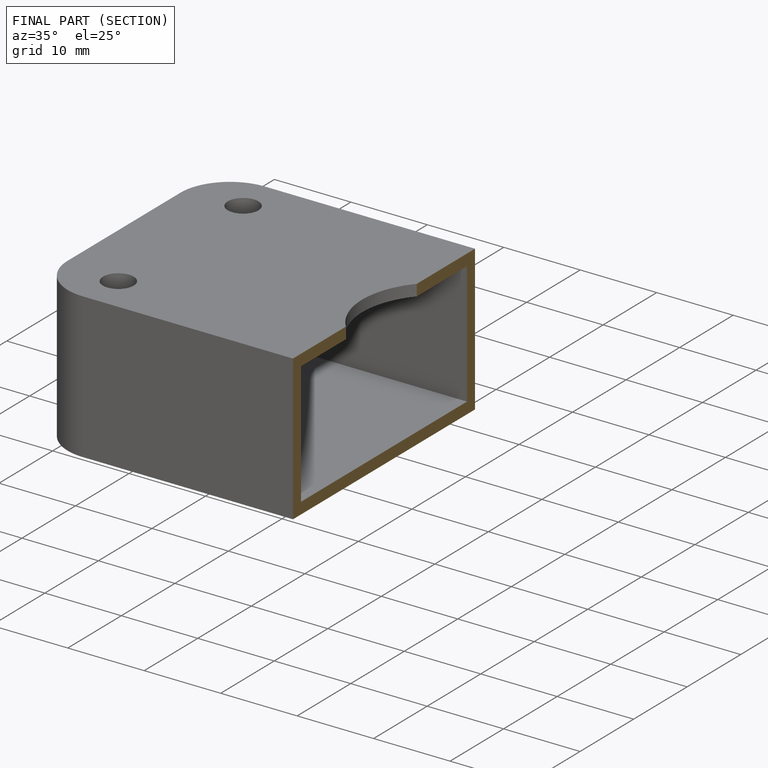
[diagram: finished part — half-section view (interior)]
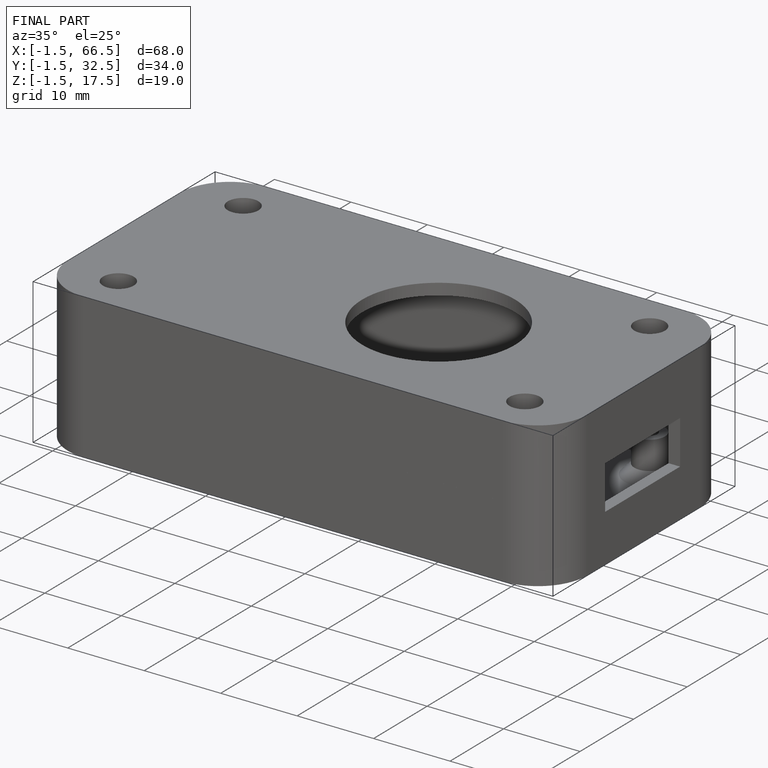
[diagram: finished part — iso view with bounding-box wireframe]
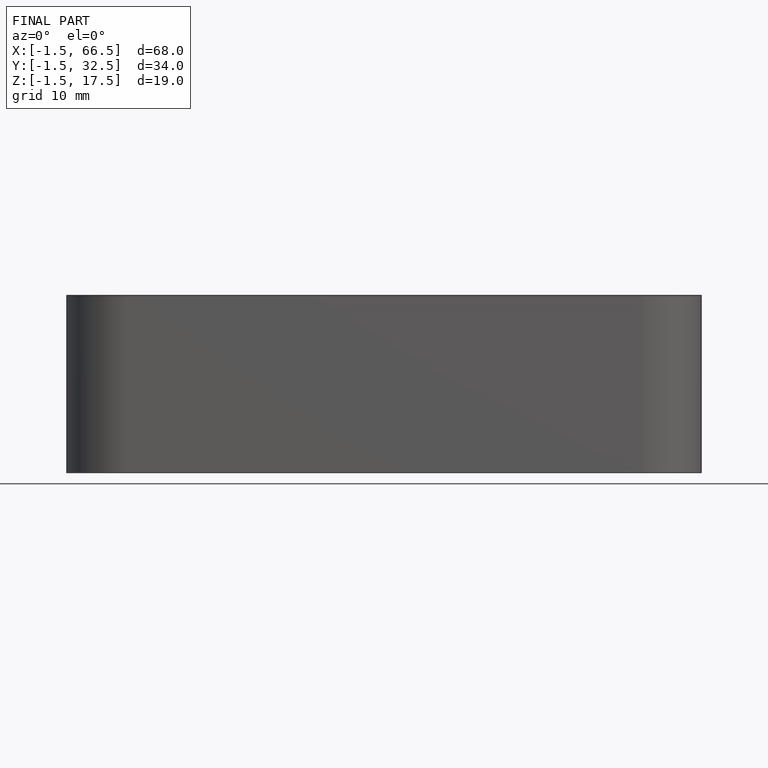
[diagram: finished part — front view with bounding-box wireframe]
